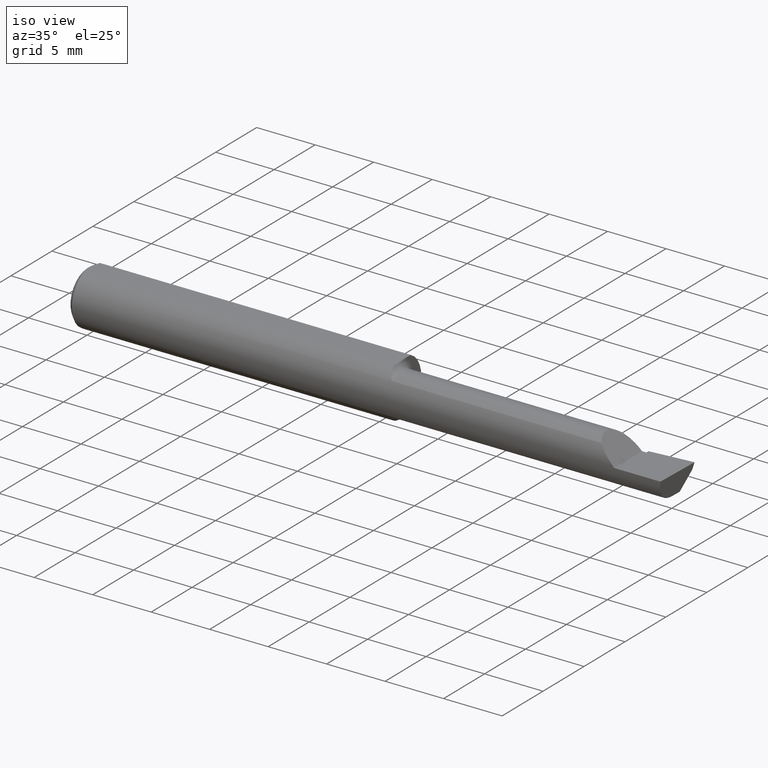
[diagram: clean part render]
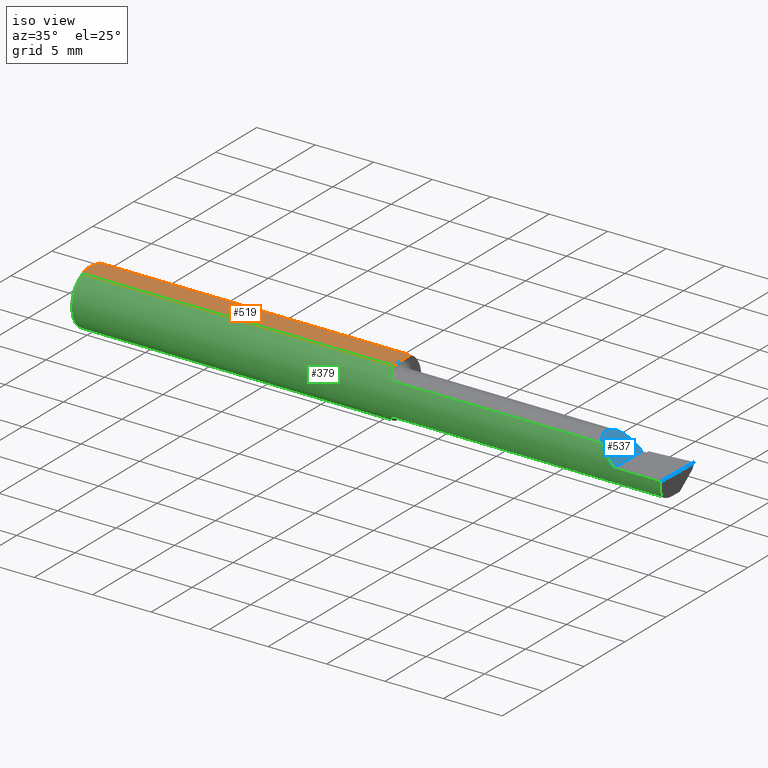
[diagram: same view with three faces highlighted in distinct colors, each labeled with its STEP entity id]
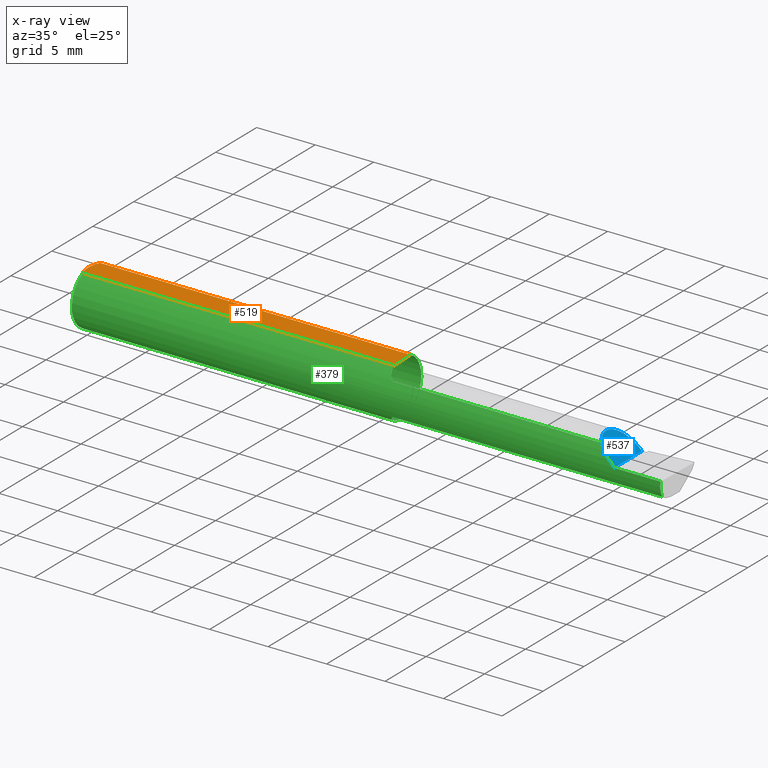
[diagram: x-ray of the same camera — body ghosted, the three highlighted faces saturated]
A machine part, iso view with three faces highlighted in distinct colors.
The next image is the same camera in x-ray (body ghosted, the three faces saturated) — at least one of them is partly hidden behind the body in this view.
Their STEP definitions:

[orange] entity #519 — the highlighted planar face has unit normal (0, -0, -1).
#2 = EDGE_LOOP ( 'NONE', ( #213, #172, #134, #616, #51, #469 ) ) ;
#9 = DIRECTION ( 'NONE',  ( -1.000000000000000000, -0.000000000000000000, -0.000000000000000000 ) ) ;
#51 = ORIENTED_EDGE ( 'NONE', *, *, #502, .F. ) ;
#62 = CARTESIAN_POINT ( 'NONE',  ( 1.063362255574652693, -0.03233437538769846215, 0.08360000000000003539 ) ) ;
#86 = EDGE_CURVE ( 'NONE', #436, #151, #486, .T. ) ;
#103 = B_SPLINE_CURVE_WITH_KNOTS ( 'NONE', 3,
 ( #541, #251, #484, #499, #198, #625 ),
 .UNSPECIFIED., .F., .F.,
 ( 4, 2, 4 ),
 ( 0.006881281100865561072, 0.007427683811376461706, 0.007974086521887361473 ),
 .UNSPECIFIED. ) ;
#134 = ORIENTED_EDGE ( 'NONE', *, *, #158, .F. ) ;
#151 = VERTEX_POINT ( 'NONE', #295 ) ;
#158 = EDGE_CURVE ( 'NONE', #427, #413, #498, .T. ) ;
#165 = FACE_OUTER_BOUND ( 'NONE', #2, .T. ) ;
#169 = CARTESIAN_POINT ( 'NONE',  ( 0.009539353699420834165, -0.02875682547511369813, 0.08360000000000003539 ) ) ;
#172 = ORIENTED_EDGE ( 'NONE', *, *, #248, .F. ) ;
#185 = CARTESIAN_POINT ( 'NONE',  ( 1.060000000000000053, 0.04209513035969836975, 0.08360000000000000764 ) ) ;
#188 = VECTOR ( 'NONE', #271, 39.37007874015748143 ) ;
#198 = CARTESIAN_POINT ( 'NONE',  ( 0.01203648650249650870, 0.03550565407121124978, 0.08360000000000000764 ) ) ;
#204 = CARTESIAN_POINT ( 'NONE',  ( 0.005000000000000237761, 1.025183009042025117E-17, 0.08360000000000000764 ) ) ;
#210 = CARTESIAN_POINT ( 'NONE',  ( 0.005000000000000228220, -0.007328888879231051229, 0.08359999999999999376 ) ) ;
#213 = ORIENTED_EDGE ( 'NONE', *, *, #86, .F. ) ;
#248 = EDGE_CURVE ( 'NONE', #413, #436, #562, .T. ) ;
#251 = CARTESIAN_POINT ( 'NONE',  ( 0.005000000000000227353, 0.007308422719211826561, 0.08360000000000000764 ) ) ;
#252 = CARTESIAN_POINT ( 'NONE',  ( 0.000000000000000000, 0.04209513035969837669, 0.08360000000000000764 ) ) ;
#253 = VECTOR ( 'NONE', #9, 39.37007874015748143 ) ;
#263 = CARTESIAN_POINT ( 'NONE',  ( 1.062861144841093175, -0.04209513036041400563, 0.08360000000000000764 ) ) ;
#271 = DIRECTION ( 'NONE',  ( 4.268512490100411279E-18, -1.000000000000000000, 1.189000693621284344E-16 ) ) ;
#278 = LINE ( 'NONE', #610, #253 ) ;
#295 = CARTESIAN_POINT ( 'NONE',  ( 1.062861144841093175, -0.04209513036041400563, 0.08360000000000000764 ) ) ;
#298 = CARTESIAN_POINT ( 'NONE',  ( 1.062798152027436993, -0.01771129213186554280, 0.08360000000000003539 ) ) ;
#301 = CARTESIAN_POINT ( 'NONE',  ( 1.060000000000000053, 0.01659152466280365210, 0.08360000000000000764 ) ) ;
#303 = CARTESIAN_POINT ( 'NONE',  ( 1.060000000000000053, 0.006742283091807260535, 0.08360000000000003539 ) ) ;
#320 = VECTOR ( 'NONE', #401, 39.37007874015748143 ) ;
#321 = CARTESIAN_POINT ( 'NONE',  ( 0.005000000000000237761, 1.025183009042025117E-17, 0.08360000000000000764 ) ) ;
#325 = VERTEX_POINT ( 'NONE', #321 ) ;
#347 = CARTESIAN_POINT ( 'NONE',  ( 1.060000000000000053, 0.01659152466280365210, 0.08360000000000000764 ) ) ;
#350 = EDGE_CURVE ( 'NONE', #151, #431, #278, .T. ) ;
#363 = DIRECTION ( 'NONE',  ( 0.000000000000000000, -1.189000693621284344E-16, -1.000000000000000000 ) ) ;
#401 = DIRECTION ( 'NONE',  ( 1.000000000000000000, 0.000000000000000000, 0.000000000000000000 ) ) ;
#408 = DIRECTION ( 'NONE',  ( 0.000000000000000000, 1.000000000000000000, -1.189000693621284344E-16 ) ) ;
#413 = VERTEX_POINT ( 'NONE', #185 ) ;
#427 = VERTEX_POINT ( 'NONE', #527 ) ;
#429 = AXIS2_PLACEMENT_3D ( 'NONE', #553, #363, #408 ) ;
#430 = CARTESIAN_POINT ( 'NONE',  ( 0.01500000000000000291, -0.04209513035969835587, 0.08360000000000000764 ) ) ;
#431 = VERTEX_POINT ( 'NONE', #430 ) ;
#436 = VERTEX_POINT ( 'NONE', #347 ) ;
#444 = EDGE_CURVE ( 'NONE', #325, #427, #103, .T. ) ;
#449 = CARTESIAN_POINT ( 'NONE',  ( 1.063154437539956199, -0.02258334521707497725, 0.08360000000000000764 ) ) ;
#465 = B_SPLINE_CURVE_WITH_KNOTS ( 'NONE', 3,
 ( #466, #598, #169, #503, #210, #204 ),
 .UNSPECIFIED., .F., .F.,
 ( 4, 2, 4 ),
 ( 0.005785415439423114564, 0.006333348270144337384, 0.006881281100865561072 ),
 .UNSPECIFIED. ) ;
#466 = CARTESIAN_POINT ( 'NONE',  ( 0.01500000000000000291, -0.04209513035969835587, 0.08360000000000000764 ) ) ;
#469 = ORIENTED_EDGE ( 'NONE', *, *, #350, .F. ) ;
#484 = CARTESIAN_POINT ( 'NONE',  ( 0.005981829149300847866, 0.01454044632356568667, 0.08360000000000000764 ) ) ;
#486 = B_SPLINE_CURVE_WITH_KNOTS ( 'NONE', 3,
 ( #301, #303, #504, #298, #449, #62, #603, #263 ),
 .UNSPECIFIED., .F., .F.,
 ( 4, 2, 2, 4 ),
 ( 0.009574067517472147071, 0.01031724332539397417, 0.01068883122935488858, 0.01106041913331580126 ),
 .UNSPECIFIED. ) ;
#498 = LINE ( 'NONE', #252, #320 ) ;
#499 = CARTESIAN_POINT ( 'NONE',  ( 0.009492654797564340635, 0.02859466010166628394, 0.08359999999999997988 ) ) ;
#502 = EDGE_CURVE ( 'NONE', #431, #325, #465, .T. ) ;
#503 = CARTESIAN_POINT ( 'NONE',  ( 0.005975039161239527503, -0.01453776427033146371, 0.08359999999999996600 ) ) ;
#504 = CARTESIAN_POINT ( 'NONE',  ( 1.061387404401340717, -0.003099822801829286469, 0.08359999999999999376 ) ) ;
#519 = ADVANCED_FACE ( 'NONE', ( #165 ), #548, .F. ) ;
#527 = CARTESIAN_POINT ( 'NONE',  ( 0.01499999999999999771, 0.04209513035969837669, 0.08360000000000000764 ) ) ;
#541 = CARTESIAN_POINT ( 'NONE',  ( 0.005000000000000237761, 1.025183009042025117E-17, 0.08360000000000000764 ) ) ;
#548 = PLANE ( 'NONE',  #429 ) ;
#553 = CARTESIAN_POINT ( 'NONE',  ( 2.000000000000000000, 0.1436000000000000332, 0.08359999999999999376 ) ) ;
#559 = CARTESIAN_POINT ( 'NONE',  ( 1.060000000000000053, 0.1436000000000000332, 0.08359999999999999376 ) ) ;
#562 = LINE ( 'NONE', #559, #188 ) ;
#598 = CARTESIAN_POINT ( 'NONE',  ( 0.01206089165507027647, -0.03555991978469315307, 0.08360000000000003539 ) ) ;
#603 = CARTESIAN_POINT ( 'NONE',  ( 1.063209978243262022, -0.03721340473516420583, 0.08360000000000000764 ) ) ;
#610 = CARTESIAN_POINT ( 'NONE',  ( 0.000000000000000000, -0.04209513035969835587, 0.08360000000000000764 ) ) ;
#616 = ORIENTED_EDGE ( 'NONE', *, *, #444, .F. ) ;
#625 = CARTESIAN_POINT ( 'NONE',  ( 0.01499999999999999771, 0.04209513035969837669, 0.08360000000000000764 ) ) ;

[blue] entity #537 — the highlighted planar face has unit normal (-0.7071, 0, -0.7071).
#4 =( BOUNDED_CURVE ( )  B_SPLINE_CURVE ( 3, ( #475, #370, #35, #412 ),
 .UNSPECIFIED., .F., .T. ) 
 B_SPLINE_CURVE_WITH_KNOTS ( ( 4, 4 ),
 ( 4.712388980384689674, 5.334140324029830182 ),
 .UNSPECIFIED. ) 
 CURVE ( )  GEOMETRIC_REPRESENTATION_ITEM ( )  RATIONAL_B_SPLINE_CURVE ( ( 1.000000000000000000, 0.9680440490283178656, 0.9680440490283178656, 1.000000000000000000 ) ) 
 REPRESENTATION_ITEM ( '' )  );
#7 = CARTESIAN_POINT ( 'NONE',  ( 1.840000000000000080, 0.04039999999999985963, 1.959434878635762025E-17 ) ) ;
#22 = AXIS2_PLACEMENT_3D ( 'NONE', #359, #400, #302 ) ;
#32 = LINE ( 'NONE', #368, #374 ) ;
#35 = CARTESIAN_POINT ( 'NONE',  ( 1.801509571749044802, -0.08756847698998002083, 0.03849042825095470161 ) ) ;
#63 = PLANE ( 'NONE',  #22 ) ;
#90 = ORIENTED_EDGE ( 'NONE', *, *, #328, .F. ) ;
#101 = CARTESIAN_POINT ( 'NONE',  ( 1.785481776797905207, -0.07608366013071837797, 0.05451822320209400580 ) ) ;
#105 = CARTESIAN_POINT ( 'NONE',  ( 1.770398118553868860, 0.04039999999999994984, 0.06960188144613040084 ) ) ;
#126 = DIRECTION ( 'NONE',  ( -0.000000000000000000, 1.000000000000000000, -0.000000000000000000 ) ) ;
#127 = ORIENTED_EDGE ( 'NONE', *, *, #220, .T. ) ;
#220 = EDGE_CURVE ( 'NONE', #231, #322, #32, .T. ) ;
#231 = VERTEX_POINT ( 'NONE', #268 ) ;
#268 = CARTESIAN_POINT ( 'NONE',  ( 1.840000000000000080, -0.09360000000000005815, 1.959434878635762025E-17 ) ) ;
#273 = CARTESIAN_POINT ( 'NONE',  ( 1.785481776797905207, -0.07608366013071837797, 0.05451822320209400580 ) ) ;
#302 = DIRECTION ( 'NONE',  ( -0.7071067811865516806, 0.000000000000000000, 0.7071067811865433539 ) ) ;
#322 = VERTEX_POINT ( 'NONE', #618 ) ;
#328 = EDGE_CURVE ( 'NONE', #231, #587, #4, .T. ) ;
#344 = CARTESIAN_POINT ( 'NONE',  ( 1.740893772288689023, -0.02263899945514353737, 0.09910622771130987718 ) ) ;
#346 =( BOUNDED_CURVE ( )  B_SPLINE_CURVE ( 3, ( #101, #344, #105, #7 ),
 .UNSPECIFIED., .F., .T. ) 
 B_SPLINE_CURVE_WITH_KNOTS ( ( 4, 4 ),
 ( 5.587886473277670518, 7.853981633974482790 ),
 .UNSPECIFIED. ) 
 CURVE ( )  GEOMETRIC_REPRESENTATION_ITEM ( )  RATIONAL_B_SPLINE_CURVE ( ( 1.000000000000000000, 0.6159343746860722613, 0.6159343746860722613, 1.000000000000000000 ) ) 
 REPRESENTATION_ITEM ( '' )  );
#359 = CARTESIAN_POINT ( 'NONE',  ( 1.840000000000000080, -0.2500000000000000555, 1.959434878635762025E-17 ) ) ;
#368 = CARTESIAN_POINT ( 'NONE',  ( 1.840000000000000080, -0.2500000000000000555, 1.959434878635762025E-17 ) ) ;
#370 = CARTESIAN_POINT ( 'NONE',  ( 1.820282210334661199, -0.09360000000000003040, 0.01971778966533898128 ) ) ;
#374 = VECTOR ( 'NONE', #126, 39.37007874015748143 ) ;
#393 = EDGE_LOOP ( 'NONE', ( #492, #90, #127 ) ) ;
#400 = DIRECTION ( 'NONE',  ( -0.7071067811865433539, 0.000000000000000000, -0.7071067811865516806 ) ) ;
#412 = CARTESIAN_POINT ( 'NONE',  ( 1.785481776797905207, -0.07608366013071837797, 0.05451822320209400580 ) ) ;
#415 = FACE_OUTER_BOUND ( 'NONE', #393, .T. ) ;
#440 = EDGE_CURVE ( 'NONE', #587, #322, #346, .T. ) ;
#475 = CARTESIAN_POINT ( 'NONE',  ( 1.840000000000000080, -0.09360000000000005815, 1.959434878635762025E-17 ) ) ;
#492 = ORIENTED_EDGE ( 'NONE', *, *, #440, .F. ) ;
#537 = ADVANCED_FACE ( 'NONE', ( #415 ), #63, .F. ) ;
#587 = VERTEX_POINT ( 'NONE', #273 ) ;
#618 = CARTESIAN_POINT ( 'NONE',  ( 1.840000000000000080, 0.04039999999999985963, 1.959434878635762025E-17 ) ) ;

[green] entity #379 — the highlighted cylindrical surface (edge-blend (fillet) strip) has radius 2.3774 mm, axis along (-1, -0, -0).
#1 = EDGE_CURVE ( 'NONE', #427, #292, #69, .T. ) ;
#4 =( BOUNDED_CURVE ( )  B_SPLINE_CURVE ( 3, ( #475, #370, #35, #412 ),
 .UNSPECIFIED., .F., .T. ) 
 B_SPLINE_CURVE_WITH_KNOTS ( ( 4, 4 ),
 ( 4.712388980384689674, 5.334140324029830182 ),
 .UNSPECIFIED. ) 
 CURVE ( )  GEOMETRIC_REPRESENTATION_ITEM ( )  RATIONAL_B_SPLINE_CURVE ( ( 1.000000000000000000, 0.9680440490283178656, 0.9680440490283178656, 1.000000000000000000 ) ) 
 REPRESENTATION_ITEM ( '' )  );
#9 = DIRECTION ( 'NONE',  ( -1.000000000000000000, -0.000000000000000000, -0.000000000000000000 ) ) ;
#11 = CARTESIAN_POINT ( 'NONE',  ( 1.072372878085587899, -0.06813570069660571105, -0.06426486695182651032 ) ) ;
#20 = EDGE_CURVE ( 'NONE', #186, #231, #491, .T. ) ;
#24 = CARTESIAN_POINT ( 'NONE',  ( 1.072718485147075240, -0.06880529263944752671, 0.06356579742164533697 ) ) ;
#30 = ORIENTED_EDGE ( 'NONE', *, *, #277, .F. ) ;
#35 = CARTESIAN_POINT ( 'NONE',  ( 1.801509571749044802, -0.08756847698998002083, 0.03849042825095470161 ) ) ;
#36 = ORIENTED_EDGE ( 'NONE', *, *, #20, .T. ) ;
#37 = CARTESIAN_POINT ( 'NONE',  ( 1.995862624392068074, -0.09360000000000009979, -6.605666309584466665E-17 ) ) ;
#46 = CARTESIAN_POINT ( 'NONE',  ( 0.01499999999999999771, 0.000000000000000000, 0.000000000000000000 ) ) ;
#47 = DIRECTION ( 'NONE',  ( -1.000000000000000000, -0.000000000000000000, -0.000000000000000000 ) ) ;
#49 = EDGE_CURVE ( 'NONE', #547, #587, #342, .T. ) ;
#55 = CYLINDRICAL_SURFACE ( 'NONE', #517, 0.09360000000000001652 ) ;
#61 = CARTESIAN_POINT ( 'NONE',  ( 1.084999999999999964, -0.07608366013071805878, -0.05451822320209422784 ) ) ;
#67 = CARTESIAN_POINT ( 'NONE',  ( 0.01499999999999999771, 0.000000000000000000, -0.09360000000000001652 ) ) ;
#69 = CIRCLE ( 'NONE', #113, 0.09360000000000001652 ) ;
#70 = CARTESIAN_POINT ( 'NONE',  ( 1.059999999999995612, -0.01523829271462615043, -0.09264723852076071908 ) ) ;
#71 = ORIENTED_EDGE ( 'NONE', *, *, #350, .T. ) ;
#77 = CARTESIAN_POINT ( 'NONE',  ( 1.989625015145392917, -0.07608366013071823919, -0.05451822320209416539 ) ) ;
#92 = ORIENTED_EDGE ( 'NONE', *, *, #158, .T. ) ;
#106 = DIRECTION ( 'NONE',  ( 1.000000000000000000, 4.268512490100411279E-18, 0.000000000000000000 ) ) ;
#111 = CARTESIAN_POINT ( 'NONE',  ( 1.989625015145392917, -0.07608366013071823919, -0.05451822320209416539 ) ) ;
#113 = AXIS2_PLACEMENT_3D ( 'NONE', #46, #47, #240 ) ;
#116 = CARTESIAN_POINT ( 'NONE',  ( 1.064336437763706122, -0.04985092026457548647, 0.07969472503477169345 ) ) ;
#118 = DIRECTION ( 'NONE',  ( 1.000000000000000000, 4.268512490100411279E-18, 0.000000000000000000 ) ) ;
#119 = ORIENTED_EDGE ( 'NONE', *, *, #212, .F. ) ;
#123 = EDGE_CURVE ( 'NONE', #292, #431, #166, .T. ) ;
#137 = VECTOR ( 'NONE', #194, 39.37007874015748143 ) ;
#139 = LINE ( 'NONE', #297, #330 ) ;
#140 = ORIENTED_EDGE ( 'NONE', *, *, #586, .F. ) ;
#149 = DIRECTION ( 'NONE',  ( -1.000000000000000000, -0.000000000000000000, -0.000000000000000000 ) ) ;
#150 = CARTESIAN_POINT ( 'NONE',  ( 1.077249994923977994, -0.07326991650738470807, -0.05826485454810942377 ) ) ;
#151 = VERTEX_POINT ( 'NONE', #295 ) ;
#156 = CARTESIAN_POINT ( 'NONE',  ( 1.084999999999999964, -0.07608366013071805878, 0.05451822320209422784 ) ) ;
#158 = EDGE_CURVE ( 'NONE', #427, #413, #498, .T. ) ;
#166 = CIRCLE ( 'NONE', #554, 0.09360000000000001652 ) ;
#171 = CARTESIAN_POINT ( 'NONE',  ( 1.060000000000000053, -0.007864705882352667973, -0.09326900021649256467 ) ) ;
#179 = CARTESIAN_POINT ( 'NONE',  ( 1.061750924354899261, -0.03635445752162102390, -0.08656092162675020629 ) ) ;
#185 = CARTESIAN_POINT ( 'NONE',  ( 1.060000000000000053, 0.04209513035969836975, 0.08360000000000000764 ) ) ;
#186 = VERTEX_POINT ( 'NONE', #308 ) ;
#194 = DIRECTION ( 'NONE',  ( -1.000000000000000000, -0.000000000000000000, -0.000000000000000000 ) ) ;
#205 = DIRECTION ( 'NONE',  ( -1.000000000000000000, -0.000000000000000000, -0.000000000000000000 ) ) ;
#211 = CARTESIAN_POINT ( 'NONE',  ( 1.081360941731894343, -0.07557034852506695766, -0.05524018594043172276 ) ) ;
#212 = EDGE_CURVE ( 'NONE', #574, #557, #222, .T. ) ;
#218 = CARTESIAN_POINT ( 'NONE',  ( 1.070942860874689151, -0.06599234460544597947, 0.06650584501266756932 ) ) ;
#222 = B_SPLINE_CURVE_WITH_KNOTS ( 'NONE', 3,
 ( #395, #456, #211, #590, #150, #446, #11, #345, #226, #607, #179, #511, #70, #171 ),
 .UNSPECIFIED., .F., .F.,
 ( 4, 2, 2, 2, 2, 2, 4 ),
 ( 1.959461805766899059E-07, 0.0001418114856513925427, 0.0002834270251222083996, 0.0005666581040638398424, 0.001133120261947107282, 0.001699582419830374504, 0.002266044577713642160 ),
 .UNSPECIFIED. ) ;
#223 = ORIENTED_EDGE ( 'NONE', *, *, #49, .F. ) ;
#226 = CARTESIAN_POINT ( 'NONE',  ( 1.066007506249287529, -0.05524264031795315943, -0.07589747771031250811 ) ) ;
#231 = VERTEX_POINT ( 'NONE', #268 ) ;
#234 = ORIENTED_EDGE ( 'NONE', *, *, #1, .F. ) ;
#240 = DIRECTION ( 'NONE',  ( 0.000000000000000000, 0.000000000000000000, 1.000000000000000000 ) ) ;
#249 = ORIENTED_EDGE ( 'NONE', *, *, #328, .T. ) ;
#252 = CARTESIAN_POINT ( 'NONE',  ( 0.000000000000000000, 0.04209513035969837669, 0.08360000000000000764 ) ) ;
#253 = VECTOR ( 'NONE', #9, 39.37007874015748143 ) ;
#254 = FACE_OUTER_BOUND ( 'NONE', #577, .T. ) ;
#268 = CARTESIAN_POINT ( 'NONE',  ( 1.840000000000000080, -0.09360000000000005815, 1.959434878635762025E-17 ) ) ;
#270 = CARTESIAN_POINT ( 'NONE',  ( 1.076209588651319438, -0.07242362088648859886, 0.05932313091832384228 ) ) ;
#273 = CARTESIAN_POINT ( 'NONE',  ( 1.785481776797905207, -0.07608366013071837797, 0.05451822320209400580 ) ) ;
#277 = EDGE_CURVE ( 'NONE', #557, #413, #627, .T. ) ;
#278 = LINE ( 'NONE', #610, #253 ) ;
#282 = AXIS2_PLACEMENT_3D ( 'NONE', #615, #118, #375 ) ;
#284 = CARTESIAN_POINT ( 'NONE',  ( 1.469999999999999973, -0.07608366013071823919, 0.05451822320209416539 ) ) ;
#292 = VERTEX_POINT ( 'NONE', #67 ) ;
#295 = CARTESIAN_POINT ( 'NONE',  ( 1.062861144841093175, -0.04209513036041400563, 0.08360000000000000764 ) ) ;
#297 = CARTESIAN_POINT ( 'NONE',  ( 1.469999999999999973, -0.07608366013071823919, -0.05451822320209416539 ) ) ;
#308 = CARTESIAN_POINT ( 'NONE',  ( 1.995862624392068074, -0.09360000000000009979, -6.605666309584466665E-17 ) ) ;
#310 = B_SPLINE_CURVE_WITH_KNOTS ( 'NONE', 3,
 ( #514, #116, #354, #218, #24, #270, #367, #317, #455, #156 ),
 .UNSPECIFIED., .F., .F.,
 ( 4, 2, 2, 2, 4 ),
 ( 4.459497343016854294E-07, 0.0006638717458672127331, 0.0009955846439336664671, 0.001161441092966892900, 0.001327297542000119551 ),
 .UNSPECIFIED. ) ;
#312 =( BOUNDED_CURVE ( )  B_SPLINE_CURVE ( 3, ( #37, #426, #555, #77 ),
 .UNSPECIFIED., .F., .F. ) 
 B_SPLINE_CURVE_WITH_KNOTS ( ( 4, 4 ),
 ( 4.922438424664829171, 5.544189768309970567 ),
 .UNSPECIFIED. ) 
 CURVE ( )  GEOMETRIC_REPRESENTATION_ITEM ( )  RATIONAL_B_SPLINE_CURVE ( ( 1.000000000000000000, 0.9680440490283178656, 0.9680440490283178656, 1.000000000000000000 ) ) 
 REPRESENTATION_ITEM ( '' )  );
#317 = CARTESIAN_POINT ( 'NONE',  ( 1.080753778368559015, -0.07537148234687034154, 0.05551905660761854294 ) ) ;
#320 = VECTOR ( 'NONE', #401, 39.37007874015748143 ) ;
#328 = EDGE_CURVE ( 'NONE', #231, #587, #4, .T. ) ;
#330 = VECTOR ( 'NONE', #588, 39.37007874015748143 ) ;
#332 = EDGE_CURVE ( 'NONE', #186, #524, #312, .T. ) ;
#342 = LINE ( 'NONE', #284, #489 ) ;
#345 = CARTESIAN_POINT ( 'NONE',  ( 1.068052623108272536, -0.06089616178095311888, -0.07140423527607858700 ) ) ;
#348 = CARTESIAN_POINT ( 'NONE',  ( 0.01499999999999999771, 0.000000000000000000, 0.000000000000000000 ) ) ;
#350 = EDGE_CURVE ( 'NONE', #151, #431, #278, .T. ) ;
#354 = CARTESIAN_POINT ( 'NONE',  ( 1.066341906786436589, -0.05682123740528511463, 0.07483672126184977291 ) ) ;
#358 = EDGE_CURVE ( 'NONE', #524, #574, #139, .T. ) ;
#367 = CARTESIAN_POINT ( 'NONE',  ( 1.077524991500365070, -0.07354719313698335204, 0.05791404302443238505 ) ) ;
#370 = CARTESIAN_POINT ( 'NONE',  ( 1.820282210334661199, -0.09360000000000003040, 0.01971778966533898128 ) ) ;
#375 = DIRECTION ( 'NONE',  ( 0.000000000000000000, 1.000000000000000000, 0.000000000000000000 ) ) ;
#379 = ADVANCED_FACE ( 'NONE', ( #254 ), #55, .T. ) ;
#387 = CARTESIAN_POINT ( 'NONE',  ( 0.000000000000000000, 0.000000000000000000, 0.000000000000000000 ) ) ;
#395 = CARTESIAN_POINT ( 'NONE',  ( 1.084999999999999964, -0.07608366013071805878, -0.05451822320209422784 ) ) ;
#401 = DIRECTION ( 'NONE',  ( 1.000000000000000000, 0.000000000000000000, 0.000000000000000000 ) ) ;
#412 = CARTESIAN_POINT ( 'NONE',  ( 1.785481776797905207, -0.07608366013071837797, 0.05451822320209400580 ) ) ;
#413 = VERTEX_POINT ( 'NONE', #185 ) ;
#426 = CARTESIAN_POINT ( 'NONE',  ( 1.993440754331651910, -0.09359999999999998876, -0.01971778966533907149 ) ) ;
#427 = VERTEX_POINT ( 'NONE', #527 ) ;
#430 = CARTESIAN_POINT ( 'NONE',  ( 0.01500000000000000291, -0.04209513035969835587, 0.08360000000000000764 ) ) ;
#431 = VERTEX_POINT ( 'NONE', #430 ) ;
#445 = DIRECTION ( 'NONE',  ( 0.000000000000000000, 0.000000000000000000, 1.000000000000000000 ) ) ;
#446 = CARTESIAN_POINT ( 'NONE',  ( 1.074014441612383797, -0.07037190759423139763, -0.06179005084634885819 ) ) ;
#455 = CARTESIAN_POINT ( 'NONE',  ( 1.082761054724242999, -0.07608366013204308220, 0.05451822320024546364 ) ) ;
#456 = CARTESIAN_POINT ( 'NONE',  ( 1.083103322019916659, -0.07608366013071818368, -0.05451822320209425560 ) ) ;
#475 = CARTESIAN_POINT ( 'NONE',  ( 1.840000000000000080, -0.09360000000000005815, 1.959434878635762025E-17 ) ) ;
#489 = VECTOR ( 'NONE', #106, 39.37007874015748143 ) ;
#491 = LINE ( 'NONE', #583, #137 ) ;
#498 = LINE ( 'NONE', #252, #320 ) ;
#511 = CARTESIAN_POINT ( 'NONE',  ( 1.060327566746672057, -0.02246933888146963182, -0.09115683487700423915 ) ) ;
#514 = CARTESIAN_POINT ( 'NONE',  ( 1.062861144841093175, -0.04209513036041400563, 0.08360000000000000764 ) ) ;
#517 = AXIS2_PLACEMENT_3D ( 'NONE', #387, #149, #445 ) ;
#518 = ORIENTED_EDGE ( 'NONE', *, *, #332, .F. ) ;
#524 = VERTEX_POINT ( 'NONE', #111 ) ;
#527 = CARTESIAN_POINT ( 'NONE',  ( 0.01499999999999999771, 0.04209513035969837669, 0.08360000000000000764 ) ) ;
#547 = VERTEX_POINT ( 'NONE', #558 ) ;
#554 = AXIS2_PLACEMENT_3D ( 'NONE', #348, #205, #599 ) ;
#555 = CARTESIAN_POINT ( 'NONE',  ( 1.991292915001084296, -0.08756847698997996532, -0.03849042825095482651 ) ) ;
#557 = VERTEX_POINT ( 'NONE', #609 ) ;
#558 = CARTESIAN_POINT ( 'NONE',  ( 1.084999999999999964, -0.07608366013071805878, 0.05451822320209422784 ) ) ;
#563 = ORIENTED_EDGE ( 'NONE', *, *, #358, .F. ) ;
#574 = VERTEX_POINT ( 'NONE', #61 ) ;
#577 = EDGE_LOOP ( 'NONE', ( #518, #36, #249, #223, #140, #71, #608, #234, #92, #30, #119, #563 ) ) ;
#583 = CARTESIAN_POINT ( 'NONE',  ( 5.659797890829555466E-31, -0.09359999999999998876, 1.030335658007946046E-15 ) ) ;
#586 = EDGE_CURVE ( 'NONE', #151, #547, #310, .T. ) ;
#587 = VERTEX_POINT ( 'NONE', #273 ) ;
#588 = DIRECTION ( 'NONE',  ( -1.000000000000000000, -4.268512490100411279E-18, -0.000000000000000000 ) ) ;
#590 = CARTESIAN_POINT ( 'NONE',  ( 1.078446742734844532, -0.07415202900322759305, -0.05712995986028746032 ) ) ;
#599 = DIRECTION ( 'NONE',  ( 0.000000000000000000, 0.000000000000000000, 1.000000000000000000 ) ) ;
#607 = CARTESIAN_POINT ( 'NONE',  ( 1.062858269845932346, -0.04306185800455387264, -0.08341374477435817281 ) ) ;
#608 = ORIENTED_EDGE ( 'NONE', *, *, #123, .F. ) ;
#609 = CARTESIAN_POINT ( 'NONE',  ( 1.060000000000000053, -0.007864705882352667973, -0.09326900021649256467 ) ) ;
#610 = CARTESIAN_POINT ( 'NONE',  ( 0.000000000000000000, -0.04209513035969835587, 0.08360000000000000764 ) ) ;
#615 = CARTESIAN_POINT ( 'NONE',  ( 1.060000000000000053, 0.000000000000000000, 0.000000000000000000 ) ) ;
#627 = CIRCLE ( 'NONE', #282, 0.09360000000000001652 ) ;